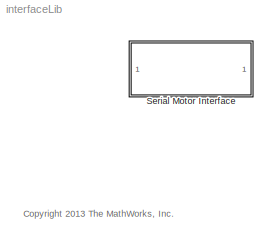
MODEL interfaceLib
KIND library
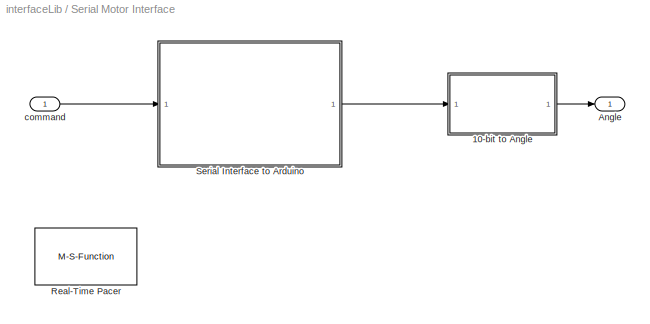
BLOCK [SubSystem] Serial Motor Interface
  FunctionWithSeparateData = off
  MaskHideContents = off
  MinAlgLoopOccurrences = off
  Opaque = off
  Ports = [1, 1]
  PropExecContextOutsideSubsystem = off
  RTWSystemCode = Auto
  RequestExecContextInheritance = off
  SID = 1
  StartFcn = openInstr = instrfind;                             \nif ~isempty(openInstr)                             \n  fclose(openInstr);                               \n  delete(openInstr);                               \nend                                                \nclear openInstr                                    \ns = serial('COM4', 'BaudRate', 115200,'Timeout',5);\nfopen(s);
  StopFcn = fclose(s);\ndelete(s);\nclear s
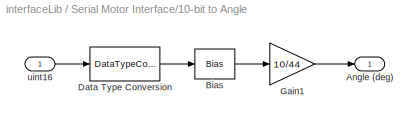
BLOCK [SubSystem] Serial Motor Interface/10-bit to Angle
  FunctionWithSeparateData = off
  MaskHideContents = off
  MinAlgLoopOccurrences = off
  Opaque = off
  Ports = [1, 1]
  PropExecContextOutsideSubsystem = off
  RTWSystemCode = Auto
  RequestExecContextInheritance = off
  SID = 3
BLOCK [Outport] Serial Motor Interface/10-bit to Angle/Angle (deg)
  IconDisplay = Port number
  SID = 8
BLOCK [Bias] Serial Motor Interface/10-bit to Angle/Bias
  Bias = -500
  SID = 5
  SaturateOnIntegerOverflow = off
BLOCK [DataTypeConversion] Serial Motor Interface/10-bit to Angle/Data Type Conversion
  OutDataTypeStr = double
  RndMeth = Floor
  SID = 6
  SaturateOnIntegerOverflow = off
BLOCK [Gain] Serial Motor Interface/10-bit to Angle/Gain1
  Gain = 10/44
  OutDataTypeStr = Inherit: Inherit via internal rule
  ParamDataTypeStr = Inherit: Inherit via internal rule
  SID = 7
  SaturateOnIntegerOverflow = off
BLOCK [Inport] Serial Motor Interface/10-bit to Angle/uint16
  IconDisplay = Port number
  SID = 4
BLOCK [Outport] Serial Motor Interface/Angle
  IconDisplay = Port number
  SID = 10
BLOCK [M-S-Function] Serial Motor Interface/Real-Time Pacer
  FunctionName = msfun_realtime_pacer
  Parameters = simTimePerRealTime
  Ports = []
  SID = 11
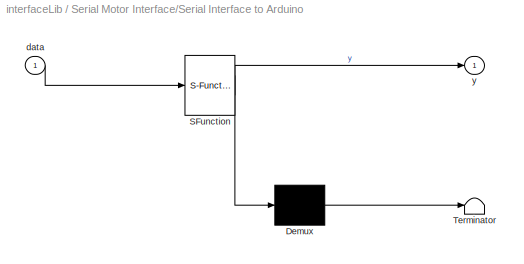
BLOCK [SubSystem] Serial Motor Interface/Serial Interface to Arduino
  ErrorFcn = Stateflow.Translate.translate
  FunctionWithSeparateData = off
  MaskHideContents = off
  MinAlgLoopOccurrences = off
  Opaque = off
  PermitHierarchicalResolution = ExplicitOnly
  Ports = [1, 1]
  PropExecContextOutsideSubsystem = off
  RTWSystemCode = Auto
  RequestExecContextInheritance = off
  SFBlockType = MATLAB Function
  SID = 9
  SystemSampleTime = 1/100
  TreatAsAtomicUnit = on
BLOCK [Demux] Serial Motor Interface/Serial Interface to Arduino/ Demux 
  Outputs = 1
  Ports = [1, 1]
  SID = 9::41
BLOCK [S-Function] Serial Motor Interface/Serial Interface to Arduino/ SFunction 
  EnableBusSupport = off
  FunctionName = sf_sfun
  PortCounts = [1 2]
  Ports = [1, 2]
  SID = 9::40
  Tag = Stateflow S-Function interfaceLib 2
BLOCK [Terminator] Serial Motor Interface/Serial Interface to Arduino/ Terminator 
  SID = 9::42
BLOCK [Inport] Serial Motor Interface/Serial Interface to Arduino/data
  IconDisplay = Port number
  SID = 9::1
BLOCK [Outport] Serial Motor Interface/Serial Interface to Arduino/y
  IconDisplay = Port number
  SID = 9::5
BLOCK [Inport] Serial Motor Interface/command
  IconDisplay = Port number
  OutDataTypeStr = uint8
  SID = 2
  SampleTime = 0.01
ANNOTATION (root): <copyright redacted>\n
LINE Serial Motor Interface/10-bit to Angle/Bias:1 -> Serial Motor Interface/10-bit to Angle/Gain1:1
LINE Serial Motor Interface/10-bit to Angle/Data Type Conversion:1 -> Serial Motor Interface/10-bit to Angle/Bias:1
LINE Serial Motor Interface/10-bit to Angle/Gain1:1 -> Serial Motor Interface/10-bit to Angle/Angle (deg):1
LINE Serial Motor Interface/10-bit to Angle/uint16:1 -> Serial Motor Interface/10-bit to Angle/Data Type Conversion:1
LINE Serial Motor Interface/10-bit to Angle:1 -> Serial Motor Interface/Angle:1
LINE Serial Motor Interface/Serial Interface to Arduino/ Demux :1 -> Serial Motor Interface/Serial Interface to Arduino/ Terminator :1
LINE Serial Motor Interface/Serial Interface to Arduino/ SFunction :1 -> Serial Motor Interface/Serial Interface to Arduino/ Demux :1
LINE Serial Motor Interface/Serial Interface to Arduino/ SFunction :2 -> Serial Motor Interface/Serial Interface to Arduino/y:1
LINE Serial Motor Interface/Serial Interface to Arduino/data:1 -> Serial Motor Interface/Serial Interface to Arduino/ SFunction :1
LINE Serial Motor Interface/Serial Interface to Arduino:1 -> Serial Motor Interface/10-bit to Angle:1
LINE Serial Motor Interface/command:1 -> Serial Motor Interface/Serial Interface to Arduino:1
CHART Serial Motor Interface/Serial Interface to Arduino states=1 transitions=1
  STATE_LABEL 'eML_blk_kernel()'
